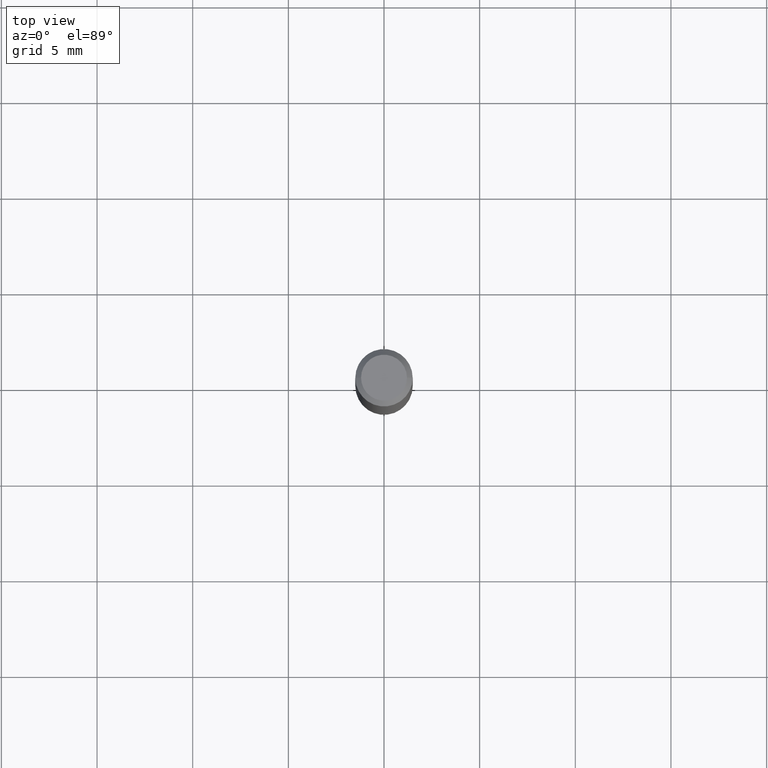
[diagram: clean part render]
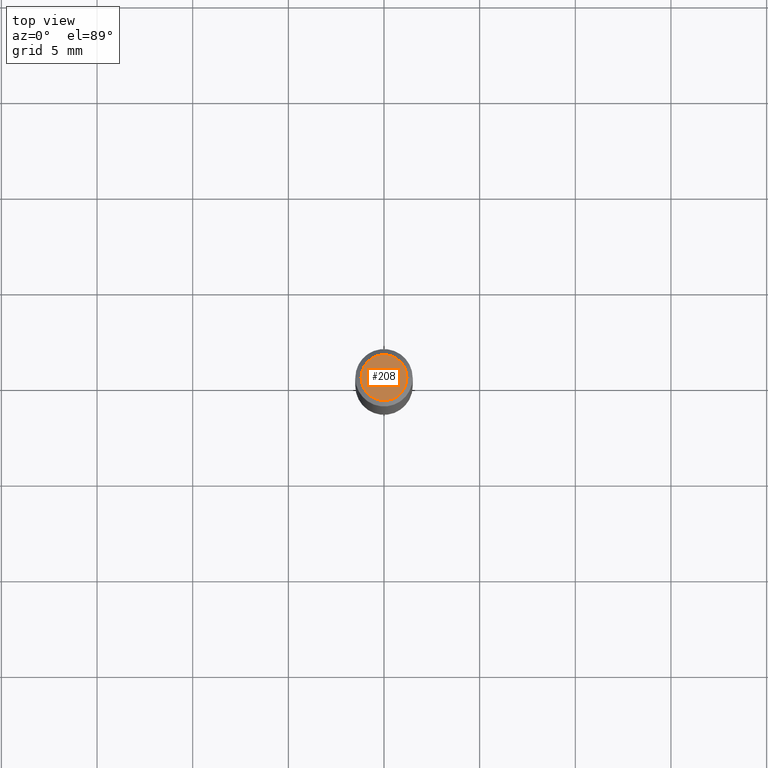
[diagram: same view with one face highlighted and labeled with its STEP entity id]
A machine part, top view. The second image highlights one B-rep face of the part: STEP entity #208.
In plain terms, the highlighted planar face has unit normal (0, -0, -1).
Its self-contained STEP definition (entity closure, byte-faithful):
#27 = DIRECTION ( 'NONE',  ( -2.445468806185136597E-29, 3.491481338843145583E-15, 1.000000000000000000 ) ) ;
#37 = PLANE ( 'NONE',  #285 ) ;
#41 = DIRECTION ( 'NONE',  ( 2.438088387897960049E-29, -3.491481338843145188E-15, -1.000000000000000000 ) ) ;
#45 = ORIENTED_EDGE ( 'NONE', *, *, #270, .T. ) ;
#49 = CIRCLE ( 'NONE', #101, 0.04724000000000000421 ) ;
#55 = EDGE_CURVE ( 'NONE', #220, #73, #49, .T. ) ;
#63 = CARTESIAN_POINT ( 'NONE',  ( 4.132873053354867254E-48, -5.900647395337818946E-34, -1.690012582823346072E-19 ) ) ;
#73 = VERTEX_POINT ( 'NONE', #227 ) ;
#101 = AXIS2_PLACEMENT_3D ( 'NONE', #462, #115, #263 ) ;
#102 = AXIS2_PLACEMENT_3D ( 'NONE', #211, #27, #450 ) ;
#115 = DIRECTION ( 'NONE',  ( -2.445468806185136597E-29, 3.491481338843145583E-15, 1.000000000000000000 ) ) ;
#164 = CARTESIAN_POINT ( 'NONE',  ( -0.04724000000000000421, 3.504923541997677355E-16, -3.380025165670481712E-19 ) ) ;
#186 = CIRCLE ( 'NONE', #102, 0.04724000000000000421 ) ;
#208 = ADVANCED_FACE ( 'NONE', ( #367 ), #37, .F. ) ;
#211 = CARTESIAN_POINT ( 'NONE',  ( 8.265746106709734507E-48, -1.180129479067563789E-33, -3.380025165646692144E-19 ) ) ;
#220 = VERTEX_POINT ( 'NONE', #164 ) ;
#227 = CARTESIAN_POINT ( 'NONE',  ( 0.04724000000000000421, -3.852183633974369345E-16, -3.380025165621689721E-19 ) ) ;
#263 = DIRECTION ( 'NONE',  ( 1.000000000000000000, -6.982962677686266711E-15, 4.876185090822587894E-29 ) ) ;
#270 = EDGE_CURVE ( 'NONE', #73, #220, #186, .T. ) ;
#285 = AXIS2_PLACEMENT_3D ( 'NONE', #63, #41, #396 ) ;
#349 = ORIENTED_EDGE ( 'NONE', *, *, #55, .T. ) ;
#367 = FACE_OUTER_BOUND ( 'NONE', #438, .T. ) ;
#396 = DIRECTION ( 'NONE',  ( -1.000000000000000000, 6.982962677686265922E-15, -4.876176775795935793E-29 ) ) ;
#438 = EDGE_LOOP ( 'NONE', ( #349, #45 ) ) ;
#450 = DIRECTION ( 'NONE',  ( 1.000000000000000000, -6.982962677686266711E-15, 4.876185090822587894E-29 ) ) ;
#462 = CARTESIAN_POINT ( 'NONE',  ( 8.265746106709734507E-48, -1.180129479067563789E-33, -3.380025165646692144E-19 ) ) ;